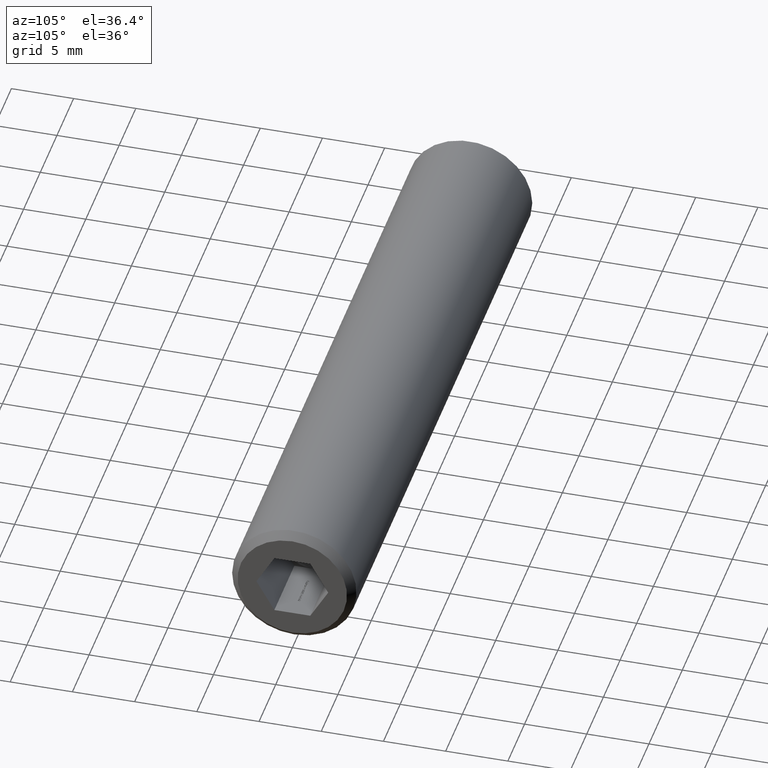
[diagram: clean part render]
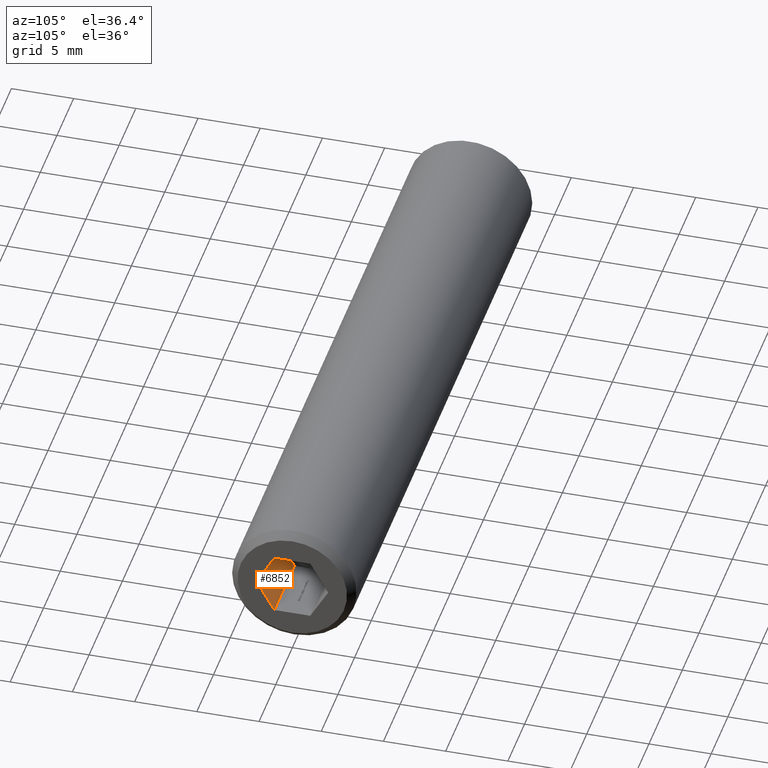
[diagram: same view with one face highlighted and labeled with its STEP entity id]
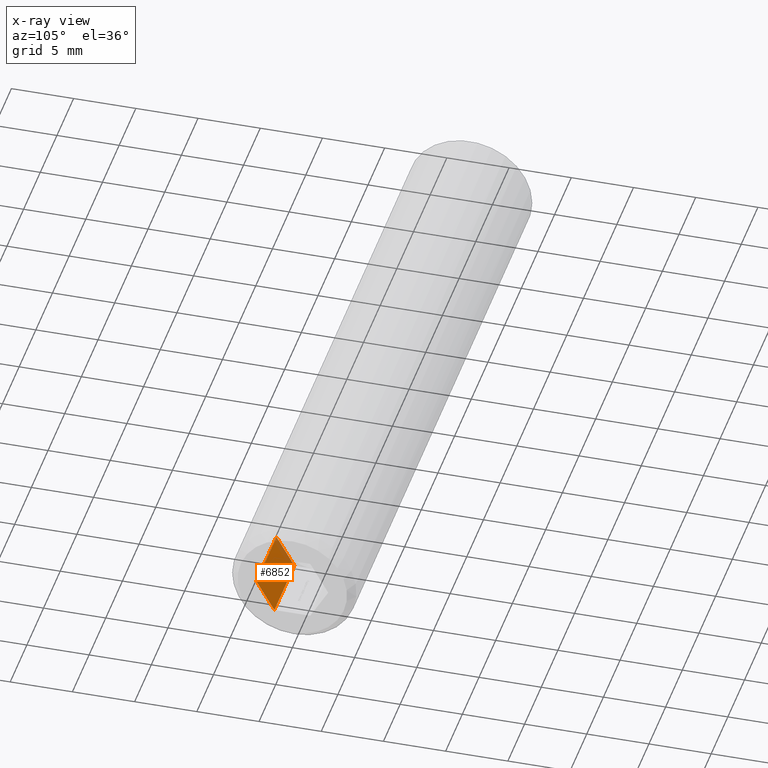
[diagram: x-ray of the same camera — body ghosted, the highlighted face saturated]
A machine part, auxiliary view. The second image highlights one B-rep face of the part: STEP entity #6852.
The next image is the same camera in x-ray: the body ghosted, the highlighted face saturated — about 8% of this face is hidden behind the body in this view.
In plain terms, the highlighted planar face has unit normal (0, -0.866, -0.5).
Its self-contained STEP definition (entity closure, byte-faithful):
#43 = LINE ( 'NONE', #15811, #10504 ) ;
#246 = DIRECTION ( 'NONE',  ( 0.0000000000000000000, 0.4999999999999996700, -0.8660254037844388200 ) ) ;
#421 = EDGE_CURVE ( 'NONE', #10241, #3672, #43, .T. ) ;
#500 = CARTESIAN_POINT ( 'NONE',  ( 49.00000000000000000, -2.886751345948128700, 5.006896442918151300E-016 ) ) ;
#764 = CARTESIAN_POINT ( 'NONE',  ( 55.00000000000000000, -2.886751345948128700, 8.680715504385284100E-016 ) ) ;
#816 = LINE ( 'NONE', #764, #3411 ) ;
#1517 = CARTESIAN_POINT ( 'NONE',  ( 49.00000000000000000, -2.886751345948128700, 5.006896442918151300E-016 ) ) ;
#1533 = ORIENTED_EDGE ( 'NONE', *, *, #9583, .F. ) ;
#3226 = VECTOR ( 'NONE', #7332, 1000.000000000000000 ) ;
#3411 = VECTOR ( 'NONE', #8506, 1000.000000000000100 ) ;
#3672 = VERTEX_POINT ( 'NONE', #11445 ) ;
#4109 = VECTOR ( 'NONE', #7785, 1000.000000000000100 ) ;
#5038 = CARTESIAN_POINT ( 'NONE',  ( 49.00000000000000000, -2.886751345948128700, 5.006896442918151300E-016 ) ) ;
#5161 = FACE_OUTER_BOUND ( 'NONE', #8112, .T. ) ;
#5679 = ORIENTED_EDGE ( 'NONE', *, *, #421, .F. ) ;
#6571 = ORIENTED_EDGE ( 'NONE', *, *, #15425, .T. ) ;
#6852 = ADVANCED_FACE ( 'NONE', ( #5161 ), #6980, .F. ) ;
#6980 = PLANE ( 'NONE',  #9841 ) ;
#7042 = LINE ( 'NONE', #12471, #3226 ) ;
#7332 = DIRECTION ( 'NONE',  ( 1.000000000000000000, -0.0000000000000000000, 6.123031769111886300E-017 ) ) ;
#7785 = DIRECTION ( 'NONE',  ( 0.0000000000000000000, 0.4999999999999996700, -0.8660254037844388200 ) ) ;
#8112 = EDGE_LOOP ( 'NONE', ( #10107, #5679, #1533, #11832, #6571 ) ) ;
#8338 = VERTEX_POINT ( 'NONE', #9694 ) ;
#8506 = DIRECTION ( 'NONE',  ( 0.0000000000000000000, 0.4999999999999996700, -0.8660254037844388200 ) ) ;
#8694 = CARTESIAN_POINT ( 'NONE',  ( 49.00000000000000000, -2.886751345948128700, 5.006896442918151300E-016 ) ) ;
#9407 = CARTESIAN_POINT ( 'NONE',  ( 49.00000000000000000, -1.443375672974065400, -2.499999999999999600 ) ) ;
#9469 = DIRECTION ( 'NONE',  ( 3.061515884555940700E-017, -0.8660254037844388200, -0.4999999999999996700 ) ) ;
#9583 = EDGE_CURVE ( 'NONE', #8338, #10241, #16420, .T. ) ;
#9694 = CARTESIAN_POINT ( 'NONE',  ( 49.00000000000000000, -2.165063509461098600, -1.249999999999996700 ) ) ;
#9841 = AXIS2_PLACEMENT_3D ( 'NONE', #500, #9469, #10764 ) ;
#10107 = ORIENTED_EDGE ( 'NONE', *, *, #15765, .T. ) ;
#10241 = VERTEX_POINT ( 'NONE', #9407 ) ;
#10504 = VECTOR ( 'NONE', #11955, 1000.000000000000000 ) ;
#10527 = VECTOR ( 'NONE', #246, 1000.000000000000100 ) ;
#10764 = DIRECTION ( 'NONE',  ( 0.0000000000000000000, 0.4999999999999996700, -0.8660254037844388200 ) ) ;
#10929 = EDGE_CURVE ( 'NONE', #12871, #8338, #11527, .T. ) ;
#11445 = CARTESIAN_POINT ( 'NONE',  ( 55.00000000000000000, -1.443375672974065400, -2.499999999999999100 ) ) ;
#11527 = LINE ( 'NONE', #1517, #10527 ) ;
#11832 = ORIENTED_EDGE ( 'NONE', *, *, #10929, .F. ) ;
#11955 = DIRECTION ( 'NONE',  ( 1.000000000000000000, -0.0000000000000000000, 6.123031769111886300E-017 ) ) ;
#12471 = CARTESIAN_POINT ( 'NONE',  ( 49.00000000000000000, -2.886751345948128700, 5.006896442918151300E-016 ) ) ;
#12871 = VERTEX_POINT ( 'NONE', #8694 ) ;
#13905 = VERTEX_POINT ( 'NONE', #15136 ) ;
#15136 = CARTESIAN_POINT ( 'NONE',  ( 55.00000000000000000, -2.886751345948128700, 6.505213034913026600E-016 ) ) ;
#15425 = EDGE_CURVE ( 'NONE', #12871, #13905, #7042, .T. ) ;
#15765 = EDGE_CURVE ( 'NONE', #13905, #3672, #816, .T. ) ;
#15811 = CARTESIAN_POINT ( 'NONE',  ( 49.00000000000000000, -1.443375672974065400, -2.499999999999999600 ) ) ;
#16420 = LINE ( 'NONE', #5038, #4109 ) ;